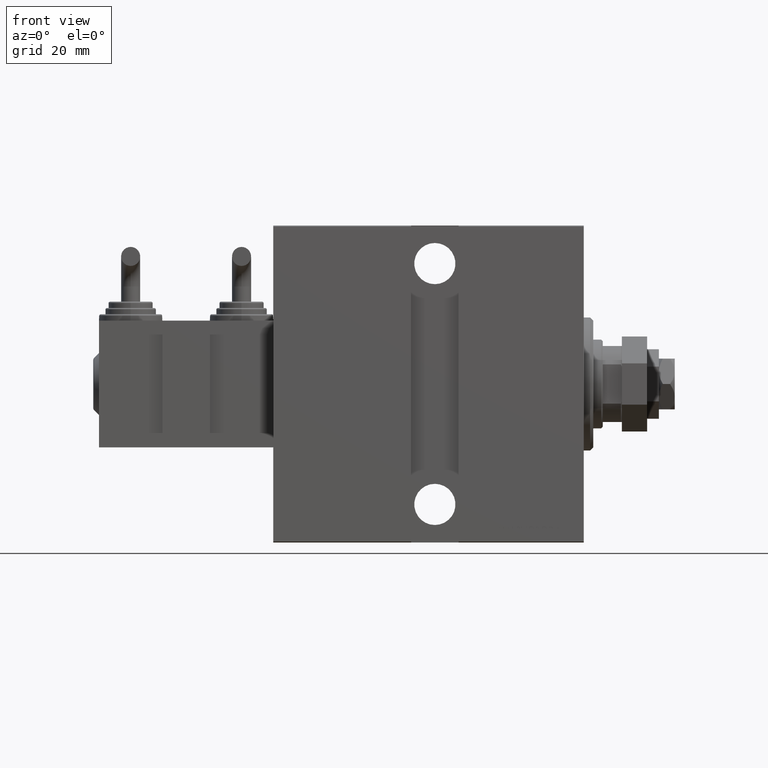
[diagram: clean part render]
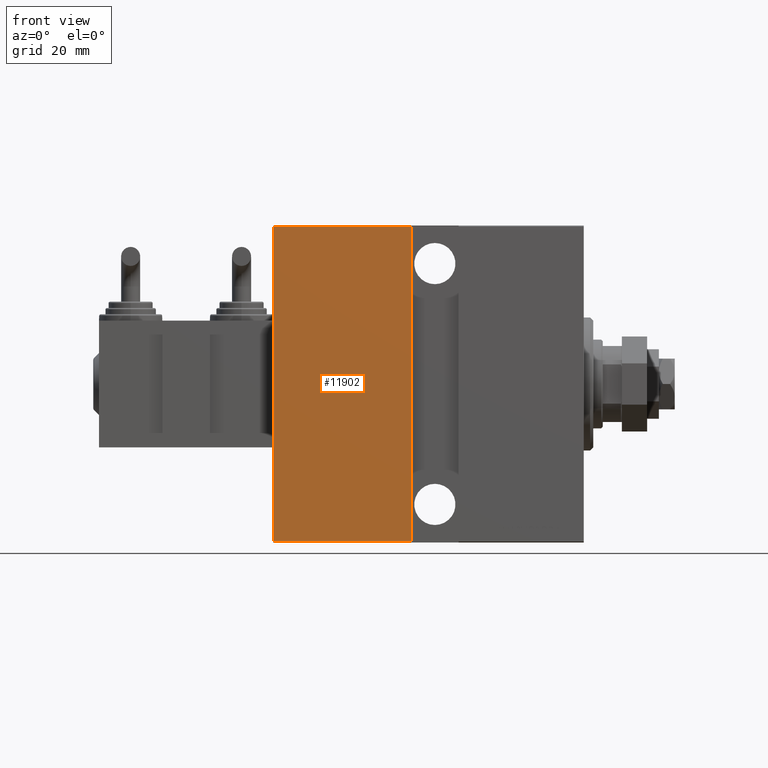
[diagram: same view with one face highlighted and labeled with its STEP entity id]
A machine part, front view. The second image highlights one B-rep face of the part: STEP entity #11902.
In plain terms, the highlighted planar face has unit normal (-0, 1, -0).
Its self-contained STEP definition (entity closure, byte-faithful):
#3653 = VECTOR ( 'NONE', #11067, 1000.000000000000000 ) ;
#4018 = ORIENTED_EDGE ( 'NONE', *, *, #43529, .T. ) ;
#4988 = LINE ( 'NONE', #20451, #10696 ) ;
#7118 = LINE ( 'NONE', #41186, #39031 ) ;
#7472 = VERTEX_POINT ( 'NONE', #43402 ) ;
#10696 = VECTOR ( 'NONE', #19707, 1000.000000000000000 ) ;
#10829 = LINE ( 'NONE', #37078, #3653 ) ;
#11067 = DIRECTION ( 'NONE',  ( -1.387778780781445676E-16, -0.000000000000000000, -1.000000000000000000 ) ) ;
#11083 = EDGE_CURVE ( 'NONE', #37560, #35589, #10829, .T. ) ;
#11902 = ADVANCED_FACE ( 'NONE', ( #33813 ), #22788, .F. ) ;
#12047 = VECTOR ( 'NONE', #12738, 1000.000000000000000 ) ;
#12738 = DIRECTION ( 'NONE',  ( 1.000000000000000000, 0.000000000000000000, 0.000000000000000000 ) ) ;
#14368 = EDGE_CURVE ( 'NONE', #7472, #19529, #7118, .T. ) ;
#18165 = DIRECTION ( 'NONE',  ( 0.000000000000000000, -1.387778780781445182E-16, 1.000000000000000000 ) ) ;
#19099 = DIRECTION ( 'NONE',  ( 0.000000000000000000, -1.000000000000000000, -1.387778780781445182E-16 ) ) ;
#19529 = VERTEX_POINT ( 'NONE', #42459 ) ;
#19707 = DIRECTION ( 'NONE',  ( -1.000000000000000000, 0.000000000000000000, 0.000000000000000000 ) ) ;
#20451 = CARTESIAN_POINT ( 'NONE',  ( 98.00000000000000000, 37.50000000000000711, -49.70000000000000284 ) ) ;
#22788 = PLANE ( 'NONE',  #45208 ) ;
#25004 = LINE ( 'NONE', #36275, #12047 ) ;
#28277 = CARTESIAN_POINT ( 'NONE',  ( 54.50000000000000000, 37.50000000000000000, -49.70000000000000284 ) ) ;
#33578 = DIRECTION ( 'NONE',  ( 0.000000000000000000, 1.387778780781445182E-16, -1.000000000000000000 ) ) ;
#33813 = FACE_OUTER_BOUND ( 'NONE', #39153, .T. ) ;
#35589 = VERTEX_POINT ( 'NONE', #28277 ) ;
#36275 = CARTESIAN_POINT ( 'NONE',  ( 98.00000000000000000, 37.49999999999999289, 49.70000000000000284 ) ) ;
#37078 = CARTESIAN_POINT ( 'NONE',  ( 54.50000000000000000, 37.50000000000000000, -50.00000000000000711 ) ) ;
#37560 = VERTEX_POINT ( 'NONE', #42747 ) ;
#38223 = ORIENTED_EDGE ( 'NONE', *, *, #48427, .T. ) ;
#38663 = CARTESIAN_POINT ( 'NONE',  ( 98.00000000000000000, 37.50000000000000711, -50.00000000000000711 ) ) ;
#39031 = VECTOR ( 'NONE', #18165, 1000.000000000000000 ) ;
#39153 = EDGE_LOOP ( 'NONE', ( #43903, #4018, #40054, #38223 ) ) ;
#40054 = ORIENTED_EDGE ( 'NONE', *, *, #11083, .F. ) ;
#41186 = CARTESIAN_POINT ( 'NONE',  ( 98.00000000000000000, 37.50000000000000711, -50.00000000000000711 ) ) ;
#42459 = CARTESIAN_POINT ( 'NONE',  ( 98.00000000000000000, 37.49999999999999289, 49.70000000000000284 ) ) ;
#42747 = CARTESIAN_POINT ( 'NONE',  ( 54.50000000000001421, 37.50000000000000000, 49.70000000000000284 ) ) ;
#43402 = CARTESIAN_POINT ( 'NONE',  ( 98.00000000000000000, 37.50000000000000711, -49.70000000000000284 ) ) ;
#43529 = EDGE_CURVE ( 'NONE', #7472, #35589, #4988, .T. ) ;
#43903 = ORIENTED_EDGE ( 'NONE', *, *, #14368, .F. ) ;
#45208 = AXIS2_PLACEMENT_3D ( 'NONE', #38663, #19099, #33578 ) ;
#48427 = EDGE_CURVE ( 'NONE', #37560, #19529, #25004, .T. ) ;